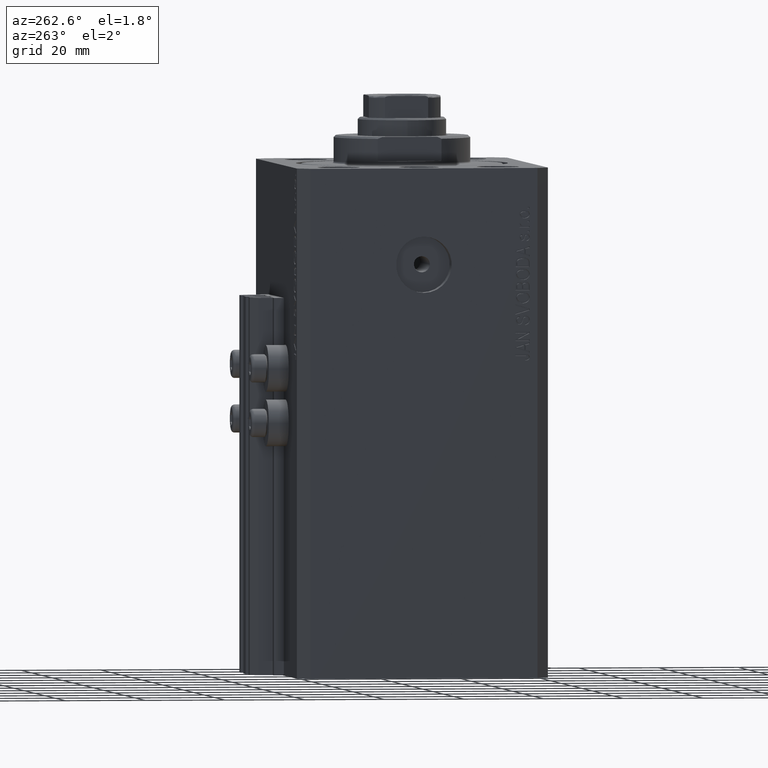
[diagram: clean part render]
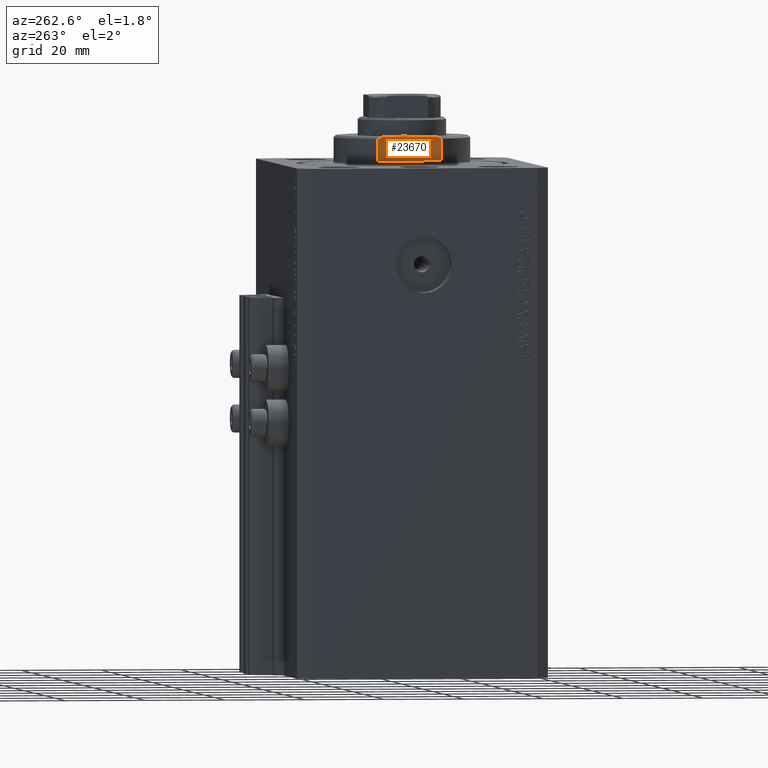
[diagram: same view with one face highlighted and labeled with its STEP entity id]
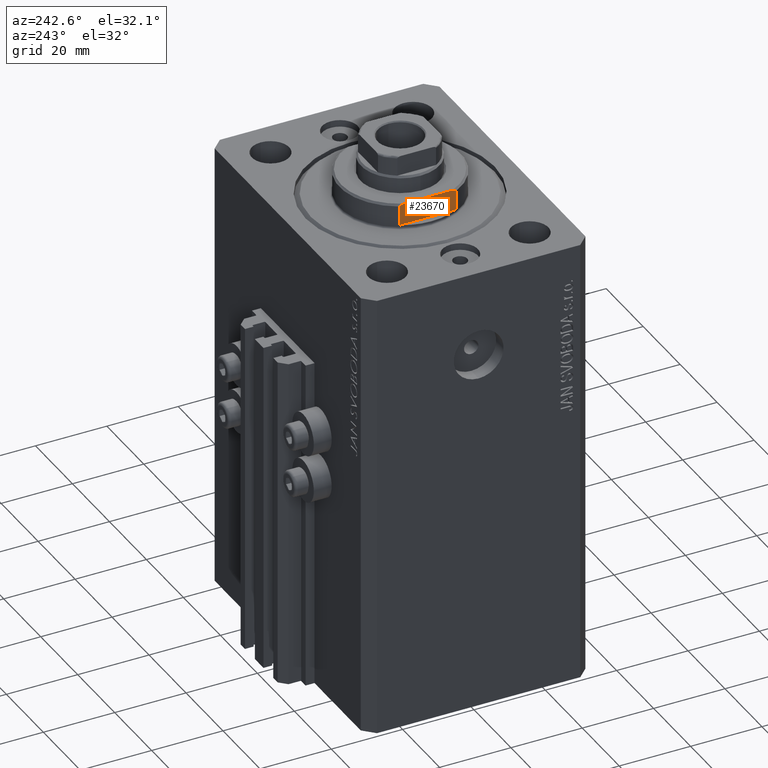
[diagram: same view with one face highlighted and labeled with its STEP entity id]
A machine part, auxiliary view. The second image highlights one B-rep face of the part: STEP entity #23670.
A second angle (auxiliary view) of the same face is appended — the face is thin or edge-on in the first view.
In plain terms, the highlighted planar face has unit normal (-1, 0, 0).
Its self-contained STEP definition (entity closure, byte-faithful):
#88 = CARTESIAN_POINT ( 'NONE',  ( 15.00000000000000000, -8.000000000000001776, -7.000000000000000000 ) ) ;
#2275 = DIRECTION ( 'NONE',  ( -0.000000000000000000, -0.000000000000000000, 1.000000000000000000 ) ) ;
#2663 = EDGE_CURVE ( 'NONE', #40830, #15592, #38286, .T. ) ;
#3592 = DIRECTION ( 'NONE',  ( 0.000000000000000000, -1.000000000000000000, -0.000000000000000000 ) ) ;
#4613 = LINE ( 'NONE', #88, #31360 ) ;
#5420 = VECTOR ( 'NONE', #3592, 1000.000000000000000 ) ;
#5572 = CARTESIAN_POINT ( 'NONE',  ( 15.00000000000000000, 7.253126193285960532, -6.842000017654668476 ) ) ;
#6314 = EDGE_CURVE ( 'NONE', #30378, #20572, #21344, .T. ) ;
#6431 = ORIENTED_EDGE ( 'NONE', *, *, #39079, .T. ) ;
#7343 = PLANE ( 'NONE',  #19608 ) ;
#7412 = LINE ( 'NONE', #17048, #5420 ) ;
#7929 = EDGE_LOOP ( 'NONE', ( #15476, #26674, #6431, #20796, #12647, #9948 ) ) ;
#9155 = CARTESIAN_POINT ( 'NONE',  ( 15.00000000000000000, 7.628315461082496363, -6.674910371255315056 ) ) ;
#9356 = CARTESIAN_POINT ( 'NONE',  ( 15.00000000000000000, -8.000000000000001776, -6.500000000000013323 ) ) ;
#9948 = ORIENTED_EDGE ( 'NONE', *, *, #12141, .F. ) ;
#12141 = EDGE_CURVE ( 'NONE', #30378, #40830, #30156, .T. ) ;
#12647 = ORIENTED_EDGE ( 'NONE', *, *, #2663, .F. ) ;
#12734 = CARTESIAN_POINT ( 'NONE',  ( 15.00000000000000000, 8.000000000000001776, -6.500000000000013323 ) ) ;
#13927 = DIRECTION ( 'NONE',  ( 0.000000000000000000, -1.000000000000000000, -0.000000000000000000 ) ) ;
#14124 = CARTESIAN_POINT ( 'NONE',  ( 14.99999999999999645, -8.000000000000003553, -1.000000000000000000 ) ) ;
#15476 = ORIENTED_EDGE ( 'NONE', *, *, #6314, .T. ) ;
#15592 = VERTEX_POINT ( 'NONE', #43168 ) ;
#16073 = EDGE_CURVE ( 'NONE', #15592, #16843, #18013, .T. ) ;
#16568 = VECTOR ( 'NONE', #2275, 1000.000000000000000 ) ;
#16843 = VERTEX_POINT ( 'NONE', #22006 ) ;
#17048 = CARTESIAN_POINT ( 'NONE',  ( 15.00000000000000000, -42.42640687119285303, -1.000000000000000000 ) ) ;
#18013 = B_SPLINE_CURVE_WITH_KNOTS ( 'NONE', 3,
 ( #30844, #42061, #27264, #9356 ),
 .UNSPECIFIED., .F., .F.,
 ( 4, 4 ),
 ( 0.04875332532859021767, 0.04998905627745620778 ),
 .UNSPECIFIED. ) ;
#18806 = CARTESIAN_POINT ( 'NONE',  ( 15.00000000000000000, -42.42640687119285303, -1.000000000000000000 ) ) ;
#19608 = AXIS2_PLACEMENT_3D ( 'NONE', #18806, #40753, #36939 ) ;
#20572 = VERTEX_POINT ( 'NONE', #28068 ) ;
#20796 = ORIENTED_EDGE ( 'NONE', *, *, #16073, .F. ) ;
#21344 = LINE ( 'NONE', #23996, #16568 ) ;
#22006 = CARTESIAN_POINT ( 'NONE',  ( 15.00000000000000000, -8.000000000000001776, -6.500000000000013323 ) ) ;
#23670 = ADVANCED_FACE ( 'NONE', ( #26196 ), #7343, .T. ) ;
#23730 = CARTESIAN_POINT ( 'NONE',  ( 15.00000000000000000, -42.42640687119285303, -7.000000000000000000 ) ) ;
#23996 = CARTESIAN_POINT ( 'NONE',  ( 15.00000000000000000, 8.000000000000001776, -7.000000000000000000 ) ) ;
#25633 = DIRECTION ( 'NONE',  ( 0.000000000000000000, 0.000000000000000000, -1.000000000000000000 ) ) ;
#26196 = FACE_OUTER_BOUND ( 'NONE', #7929, .T. ) ;
#26674 = ORIENTED_EDGE ( 'NONE', *, *, #38155, .T. ) ;
#26745 = VECTOR ( 'NONE', #13927, 1000.000000000000000 ) ;
#27264 = CARTESIAN_POINT ( 'NONE',  ( 15.00000000000000000, -7.629305121525828071, -6.674444648693746984 ) ) ;
#28068 = CARTESIAN_POINT ( 'NONE',  ( 14.99999999999999645, 8.000000000000003553, -1.000000000000000000 ) ) ;
#30156 = B_SPLINE_CURVE_WITH_KNOTS ( 'NONE', 3,
 ( #12734, #9155, #5572, #34686 ),
 .UNSPECIFIED., .F., .F.,
 ( 4, 4 ),
 ( 0.03336039268696996268, 0.03459498301323797598 ),
 .UNSPECIFIED. ) ;
#30378 = VERTEX_POINT ( 'NONE', #34161 ) ;
#30844 = CARTESIAN_POINT ( 'NONE',  ( 14.99999999999999645, -6.873863542433817031, -7.000000000000000000 ) ) ;
#31360 = VECTOR ( 'NONE', #25633, 1000.000000000000000 ) ;
#32090 = VERTEX_POINT ( 'NONE', #14124 ) ;
#34161 = CARTESIAN_POINT ( 'NONE',  ( 15.00000000000000000, 8.000000000000001776, -6.500000000000013323 ) ) ;
#34686 = CARTESIAN_POINT ( 'NONE',  ( 14.99999999999999645, 6.873863542433817031, -7.000000000000000000 ) ) ;
#36939 = DIRECTION ( 'NONE',  ( -0.000000000000000000, 0.000000000000000000, -1.000000000000000000 ) ) ;
#38155 = EDGE_CURVE ( 'NONE', #20572, #32090, #7412, .T. ) ;
#38286 = LINE ( 'NONE', #23730, #26745 ) ;
#38860 = CARTESIAN_POINT ( 'NONE',  ( 14.99999999999999645, 6.873863542433817031, -7.000000000000000000 ) ) ;
#39079 = EDGE_CURVE ( 'NONE', #32090, #16843, #4613, .T. ) ;
#40753 = DIRECTION ( 'NONE',  ( 1.000000000000000000, 0.000000000000000000, -0.000000000000000000 ) ) ;
#40830 = VERTEX_POINT ( 'NONE', #38860 ) ;
#42061 = CARTESIAN_POINT ( 'NONE',  ( 15.00000000000000000, -7.254193676168162241, -6.841555306644511170 ) ) ;
#43168 = CARTESIAN_POINT ( 'NONE',  ( 14.99999999999999645, -6.873863542433817031, -7.000000000000000000 ) ) ;